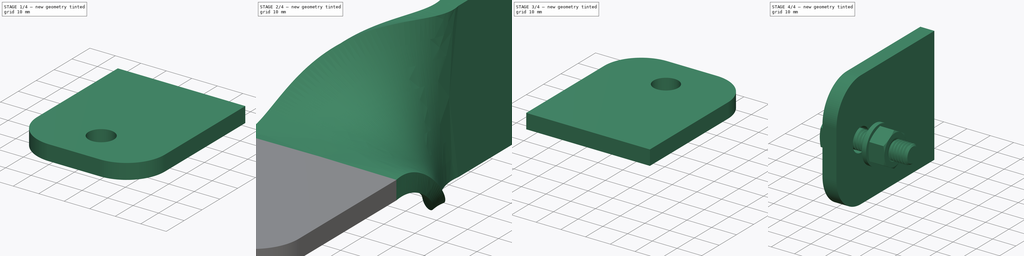
[diagram: build sequence overview — one tinted view per stage of 4, left to right]
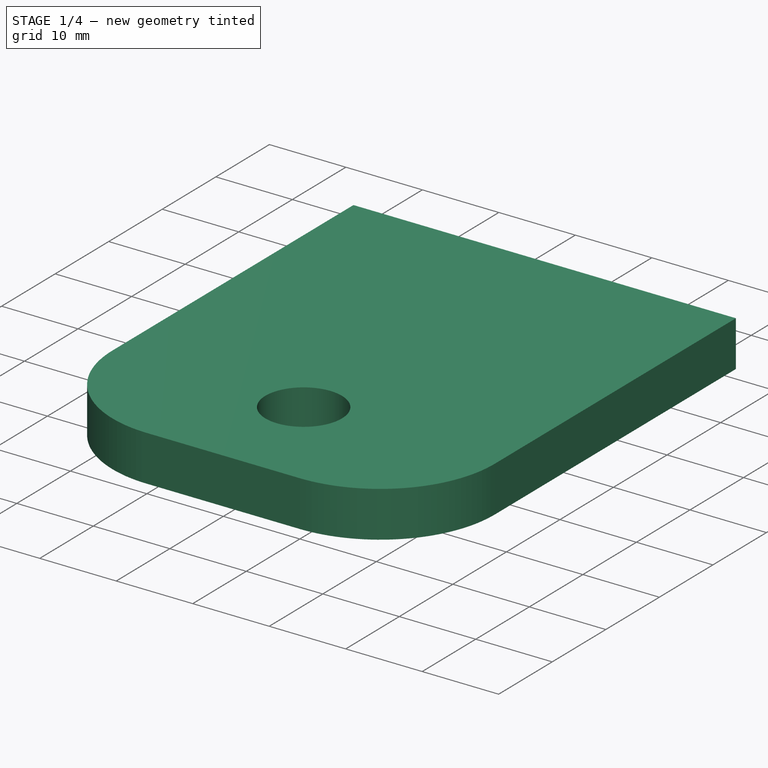
[diagram: stage 1 of 4 — iso view after this stage's code; geometry added in this stage tinted green]
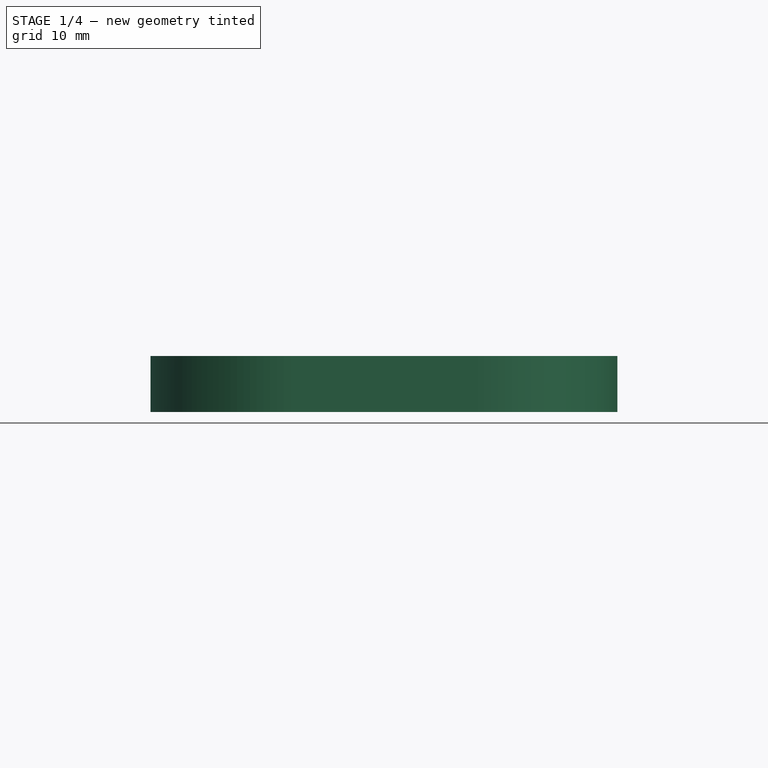
[diagram: stage 1 of 4 — front view after this stage's code; geometry added in this stage tinted green]
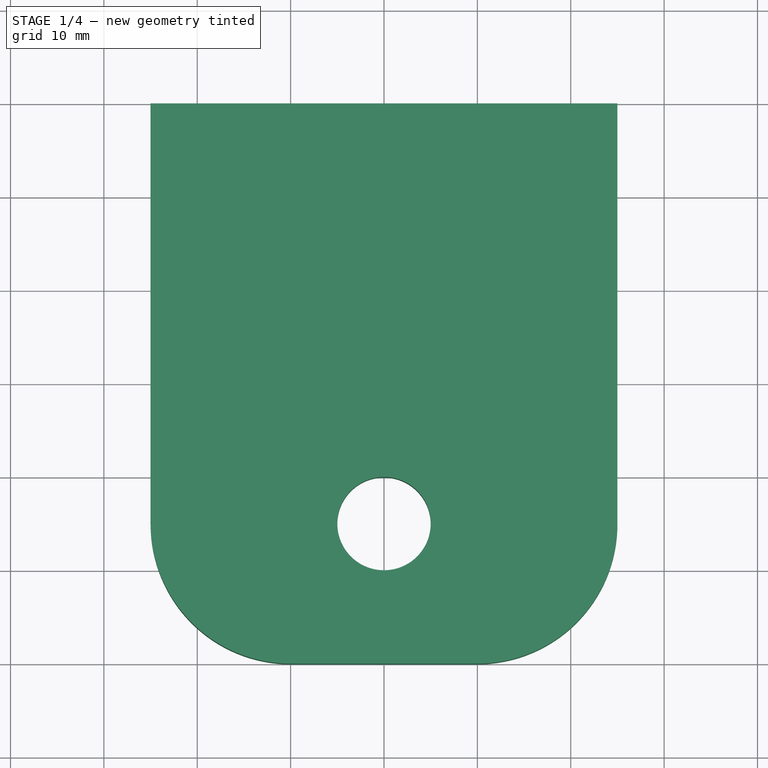
[diagram: stage 1 of 4 — top view after this stage's code; geometry added in this stage tinted green]
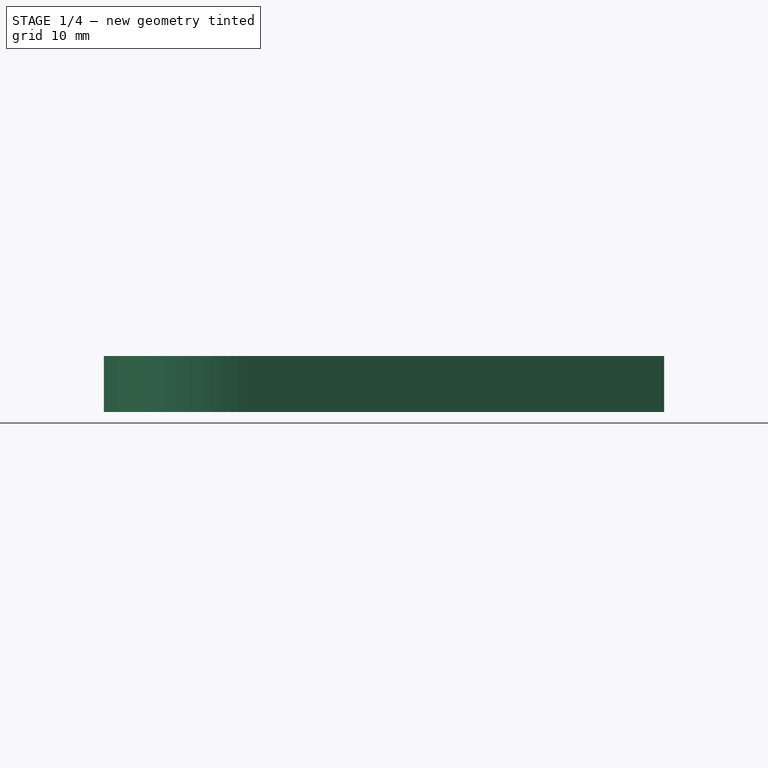
[diagram: stage 1 of 4 — right view after this stage's code; geometry added in this stage tinted green]
FCSTD DOCUMENT  (FreeCAD 0.19R17646 (Git))
Label: CHAPA CURVADA
License: All rights reserved
LicenseURL: http://en.wikipedia.org/wiki/All_rights_reserved
objects: PartDesign::Body×6, Part::FeaturePython×6, PartDesign::FeatureBase×5, Sketcher::SketchObject×1, Part::Loft×1, Part::Extrusion×1, Part::Fillet×1, Part::Cylinder×1, Part::Cut×1, Part::MultiFuse×1, Part::Compound×1
note: 25 computed .brp shape members not serialized (recipe doc carries the construction recipe); baked Part::Feature solids carry a one-line shape summary decoded from their .brp

FEATURE [Part::Extrusion] Extrude
  Base = -> Clone003
  Dir = (-3e-16,1,0)
  DirMode = 2
  FaceMakerClass = Part::FaceMakerBullseye
  LengthFwd = 60
  LengthRev = 0
  Reversed = true
  Solid = true
  Symmetric = false
FEATURE [Part::Fillet] Fillet
  Base = -> Extrude
  Edges = 2 edges r=15: [Edge7,Edge12]
FEATURE [Part::Cylinder] Cylinder
  Angle = 360
  AttacherType = Attacher::AttachEngine3D
  Height = 10
  Placement = pos=(0,-75,-5) rot=(0,0,1;0rad)
  Radius = 5
FEATURE [Part::Cut] Cut
  Base = -> Fillet
  Tool = -> Cylinder
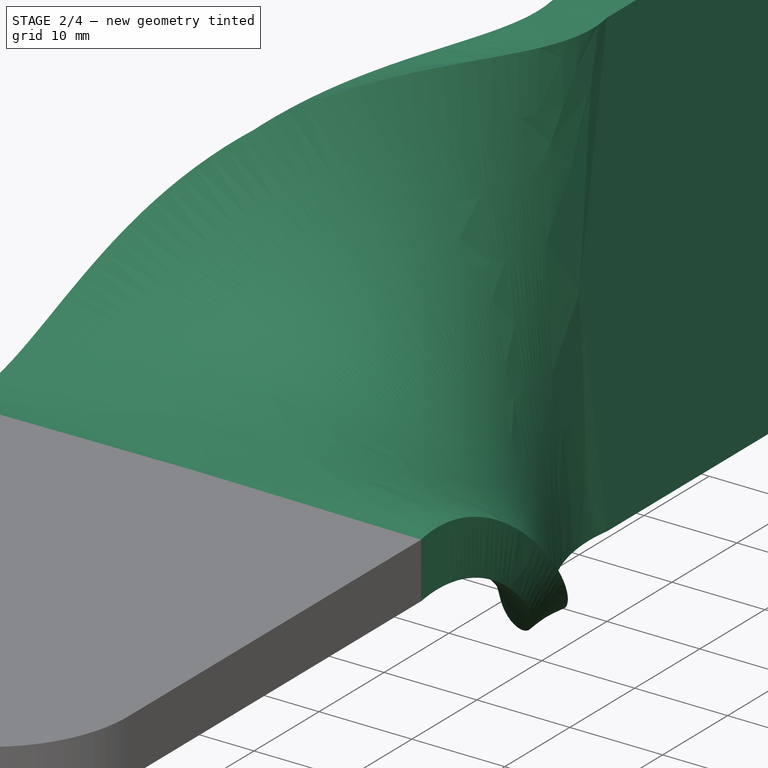
[diagram: stage 2 of 4 — iso view after this stage's code; geometry added in this stage tinted green]
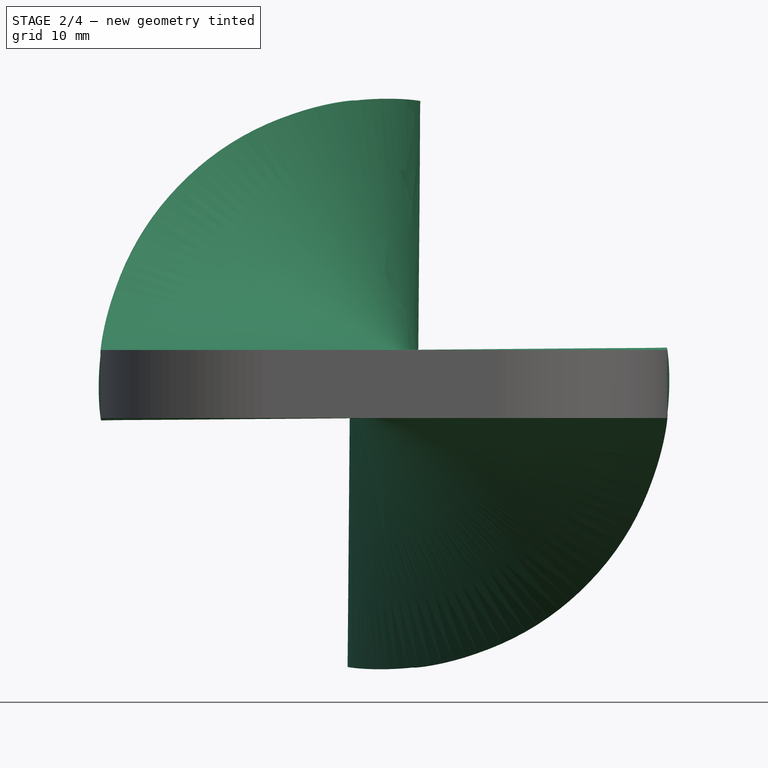
[diagram: stage 2 of 4 — front view after this stage's code; geometry added in this stage tinted green]
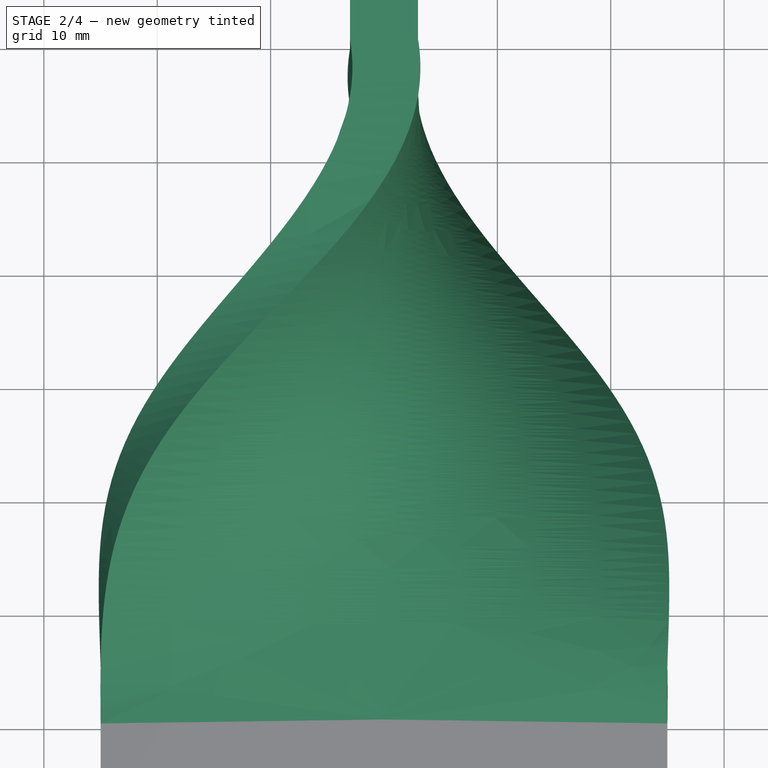
[diagram: stage 2 of 4 — top view after this stage's code; geometry added in this stage tinted green]
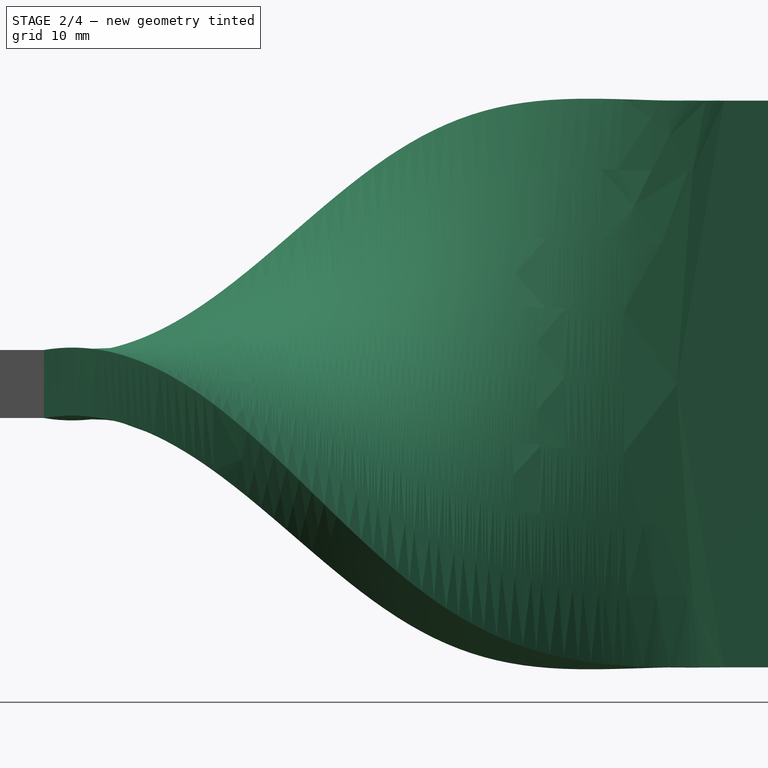
[diagram: stage 2 of 4 — right view after this stage's code; geometry added in this stage tinted green]
FEATURE [Sketcher::SketchObject] Sketch
  MapMode = 5
  Placement = pos=(0,0,0) rot=(1,0,0;1.5708rad)
  Support = -> [XZ_Plane]
  sketch-geometry (4):
    g0: LineSegment StartX=-15.5563 StartY=19.799 StartZ=0 EndX=19.799 EndY=-15.5563 EndZ=0
    g1: LineSegment StartX=19.799 StartY=-15.5563 StartZ=0 EndX=15.5563 EndY=-19.799 EndZ=0
    g2: LineSegment StartX=15.5563 StartY=-19.799 StartZ=0 EndX=-19.799 EndY=15.5563 EndZ=0
    g3: LineSegment StartX=-19.799 StartY=15.5563 StartZ=0 EndX=-15.5563 EndY=19.799 EndZ=0
  constraints (11):
    c: Coincident(g0,g1)
    c: Coincident(g1,g2)
    c: Coincident(g2,g3)
    c: Coincident(g3,g0)
    c: Symmetric(g2,g0,g-1)
    c: Parallel(g0,g2)
    c: Parallel(g1,g3)
    c: Perpendicular(g3,g0)
    c: Distance(g3) = 6
    c: Distance(g0) = 50
    c: Angle(g-2,g0) = 0.785398
FEATURE [PartDesign::Body] Body
  Group = -> [Sketch]
  Origin = -> Origin
FEATURE [PartDesign::FeatureBase] Clone
  BaseFeature = -> Sketch
  Placement = pos=(0,25,-5.6e-15) rot=(-0.862856,-0.357407,0.357407;4.56541rad)
FEATURE [PartDesign::Body] Body001
  Group = -> [Clone]
  Origin = -> Origin001
  Tip = -> Clone
FEATURE [PartDesign::FeatureBase] Clone001
  BaseFeature = -> Sketch
  Placement = pos=(0,30,-6.7e-15) rot=(-0.862856,-0.357407,0.357407;4.56541rad)
FEATURE [PartDesign::Body] Body002
  Group = -> [Clone001]
  Origin = -> Origin002
  Tip = -> Clone001
FEATURE [PartDesign::FeatureBase] Clone002
  BaseFeature = -> Sketch
  Placement = pos=(0,-25,5.6e-15) rot=(0.862856,-0.357407,0.357407;1.71777rad)
FEATURE [PartDesign::Body] Body003
  Group = -> [Clone002]
  Origin = -> Origin003
  Tip = -> Clone002
FEATURE [PartDesign::FeatureBase] Clone003
  BaseFeature = -> Sketch
  Placement = pos=(0,-30,6.7e-15) rot=(0.862856,-0.357407,0.357407;1.71777rad)
FEATURE [PartDesign::Body] Body004
  Group = -> [Clone003]
  Origin = -> Origin004
  Tip = -> Clone003
FEATURE [Part::Loft] Loft
  Closed = false
  MaxDegree = 5
  Ruled = false
  Sections = -> [Clone003,Clone002,Sketch,Clone,Clone001]
  Solid = true
FEATURE [Part::FeaturePython] Clone004  label="Cut001"  # Draft clone (typed FeaturePython)
  AttacherType = Attacher::AttachEngine3D
  Fuse = false
  Objects = -> [Cut]
  Placement = pos=(0,0,0) rot=(-0.707107,0,0.707107;3.14159rad)
  Scale = (1,1,1)
FEATURE [Part::MultiFuse] Fusion
  Shapes = -> [Clone004,Cut,Loft]
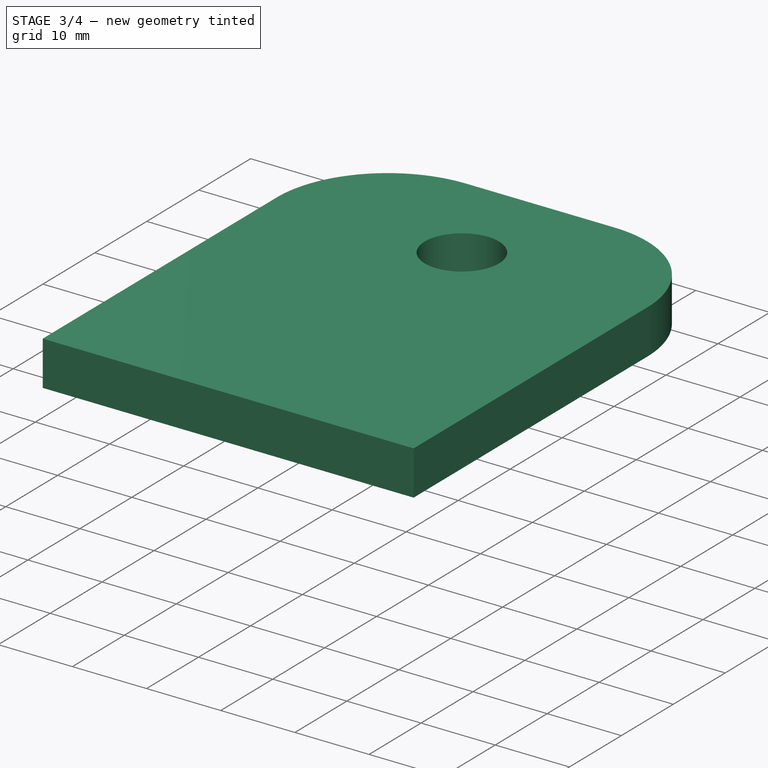
[diagram: stage 3 of 4 — iso view after this stage's code; geometry added in this stage tinted green]
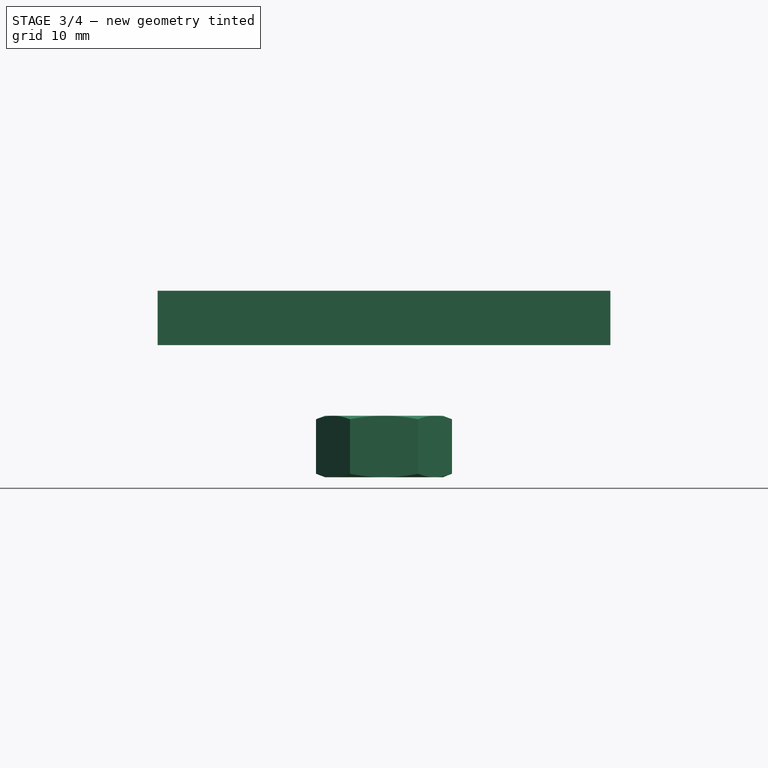
[diagram: stage 3 of 4 — front view after this stage's code; geometry added in this stage tinted green]
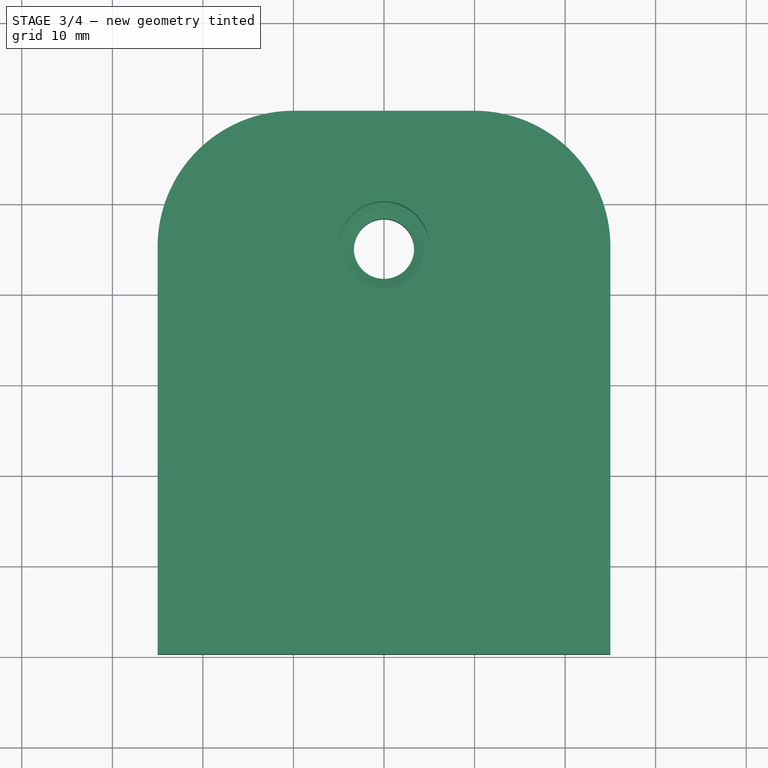
[diagram: stage 3 of 4 — top view after this stage's code; geometry added in this stage tinted green]
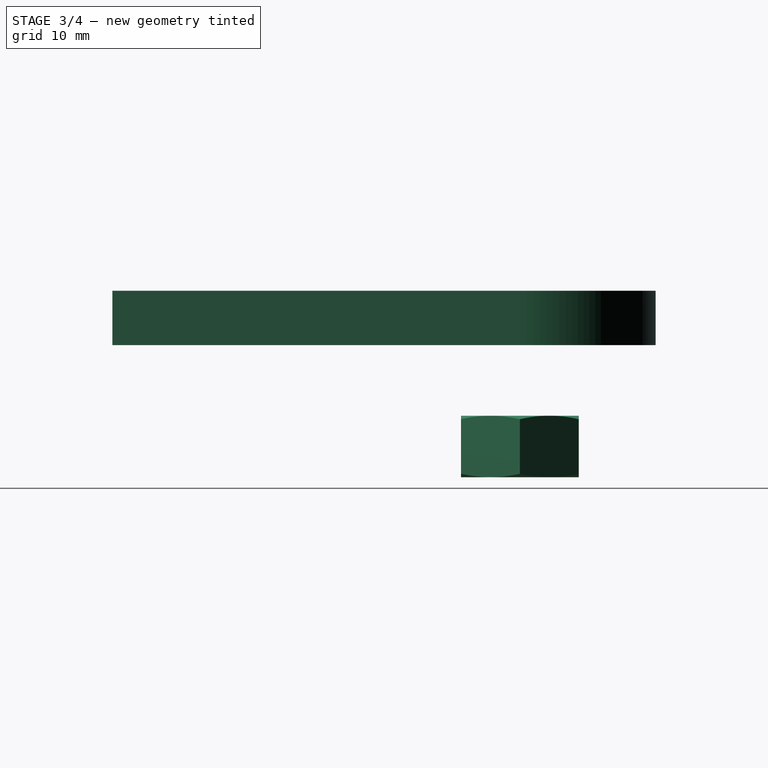
[diagram: stage 3 of 4 — right view after this stage's code; geometry added in this stage tinted green]
FEATURE [Part::FeaturePython] Clone005  label="Cut002"  # Draft clone (typed FeaturePython)
  AttacherType = Attacher::AttachEngine3D
  Fuse = false
  Objects = -> [Cut]
  Placement = pos=(0,-150,6) rot=(1,0,0;3.14159rad)
  Scale = (1,1,1)
FEATURE [Part::FeaturePython] Washer001  label="M8-Washer001"  # Fasteners workbench fastener (typed FeaturePython)
  Placement = pos=(0,-75,-3) rot=(-1,0,0;3.14159rad)
  baseObject = -> Fusion [Edge33]
  diameter = 8
  invert = true
  matchOuter = false
  offset = 0
  type = 0
FEATURE [Part::FeaturePython] Nut  label="M8-Nut"  # Fasteners workbench fastener (typed FeaturePython)
  Placement = pos=(0,-75,-4.8) rot=(-1,0,0;3.14159rad)
  baseObject = -> Washer001 [Edge1]
  diameter = 9
  invert = false
  matchOuter = false
  offset = 0
  thread = false
  type = 4
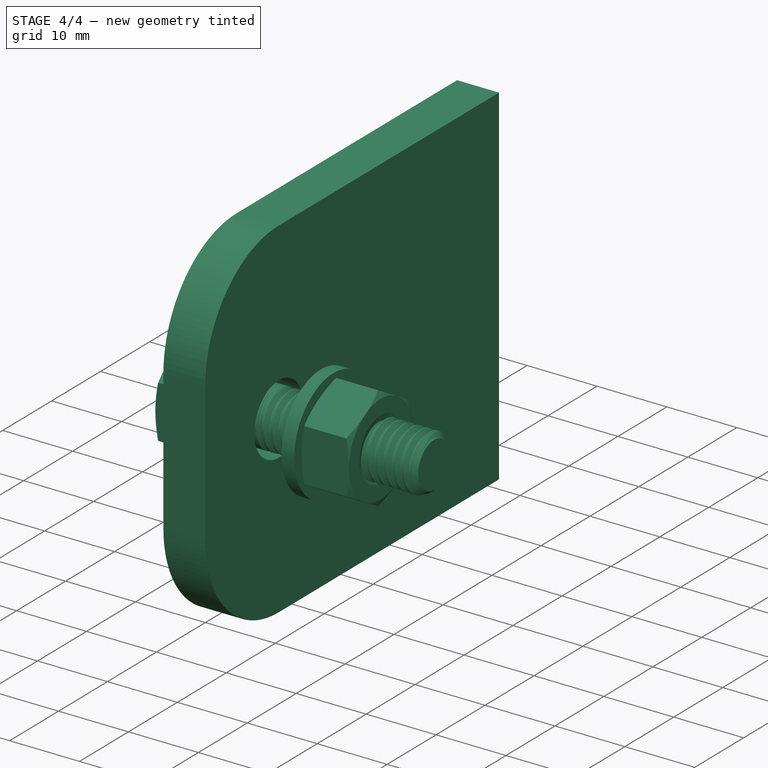
[diagram: stage 4 of 4 — iso view after this stage's code; geometry added in this stage tinted green]
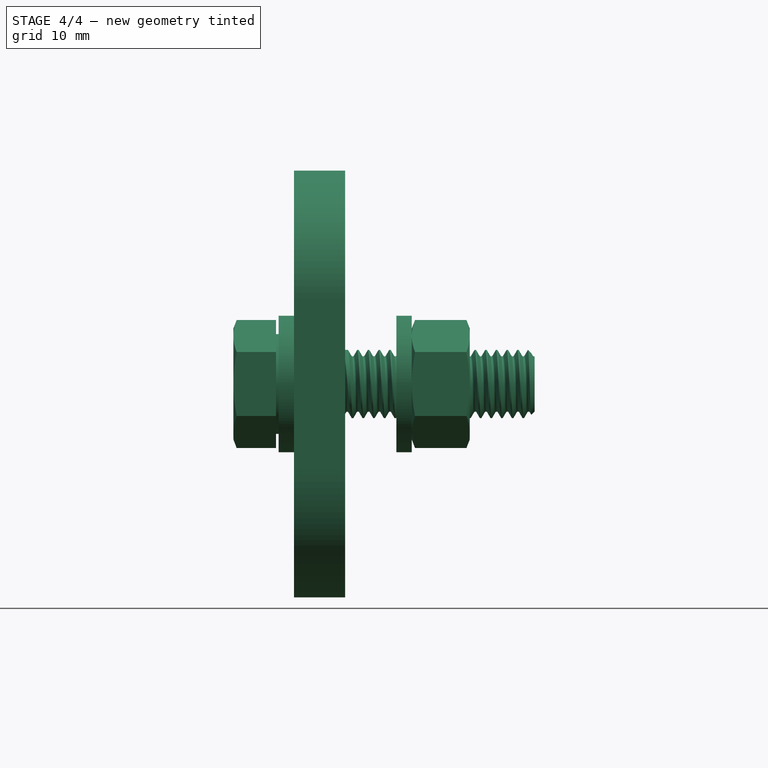
[diagram: stage 4 of 4 — front view after this stage's code; geometry added in this stage tinted green]
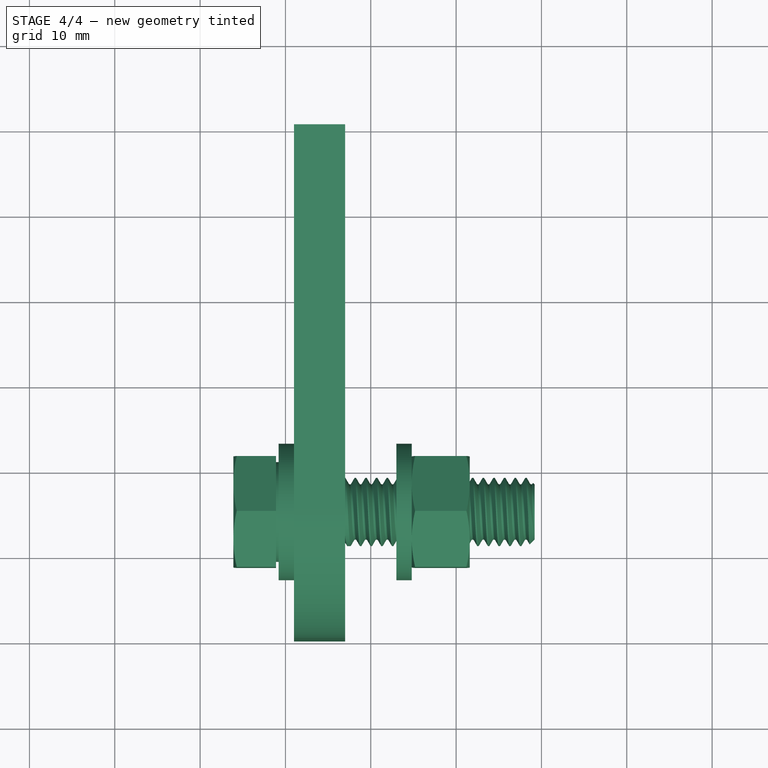
[diagram: stage 4 of 4 — top view after this stage's code; geometry added in this stage tinted green]
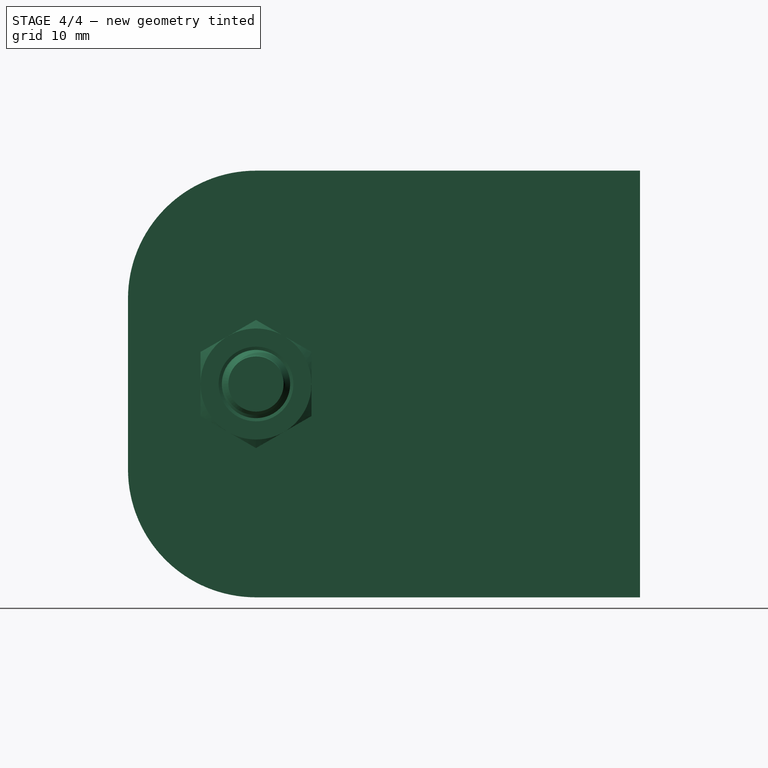
[diagram: stage 4 of 4 — right view after this stage's code; geometry added in this stage tinted green]
FEATURE [Part::FeaturePython] Washer  label="M8-Washer"  # Fasteners workbench fastener (typed FeaturePython)
  Placement = pos=(0,-75,9) rot=(0,0,1;0rad)
  baseObject = -> Clone005 [Edge21]
  diameter = 8
  invert = true
  matchOuter = false
  offset = 0
  type = 0
FEATURE [Part::FeaturePython] Screw  label="M8x30-Screw"  # Fasteners workbench fastener (typed FeaturePython)
  Placement = pos=(0,-75,10.8) rot=(0,0,1;0rad)
  baseObject = -> Washer [Edge1]
  diameter = 9
  invert = false
  length = 0
  matchOuter = false
  offset = 0
  thread = true
  type = 13
FEATURE [Part::Compound] Compound
  Links = -> [Clone005,Washer,Washer001,Screw,Nut]
FEATURE [PartDesign::FeatureBase] Clone006
  BaseFeature = -> Compound
  Placement = pos=(0,0,0) rot=(-0.707107,0,0.707107;3.14159rad)
FEATURE [PartDesign::Body] Body005
  Group = -> [Clone006]
  Origin = -> Origin005
  Tip = -> Clone006
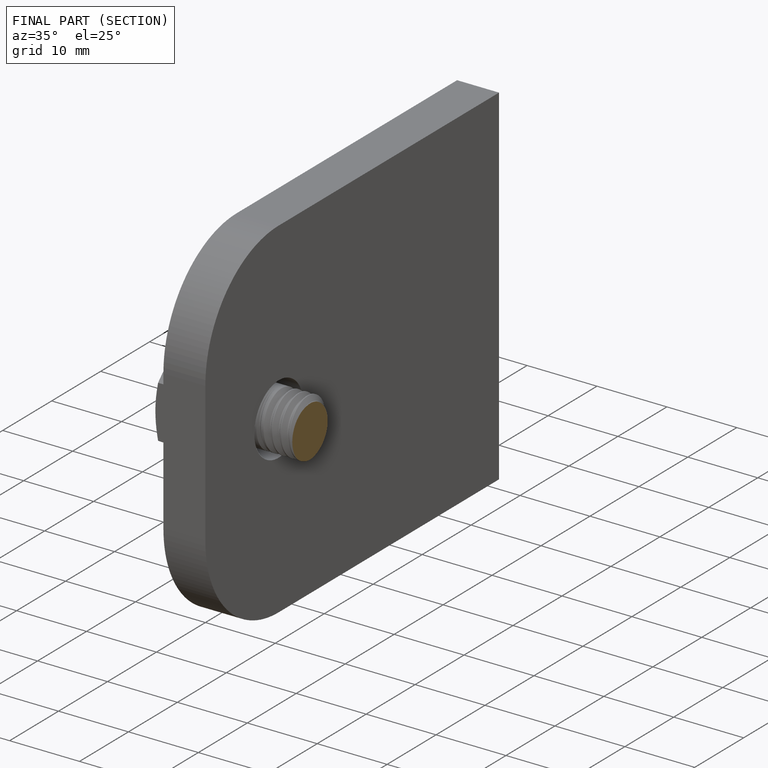
[diagram: finished part — half-section view (interior)]
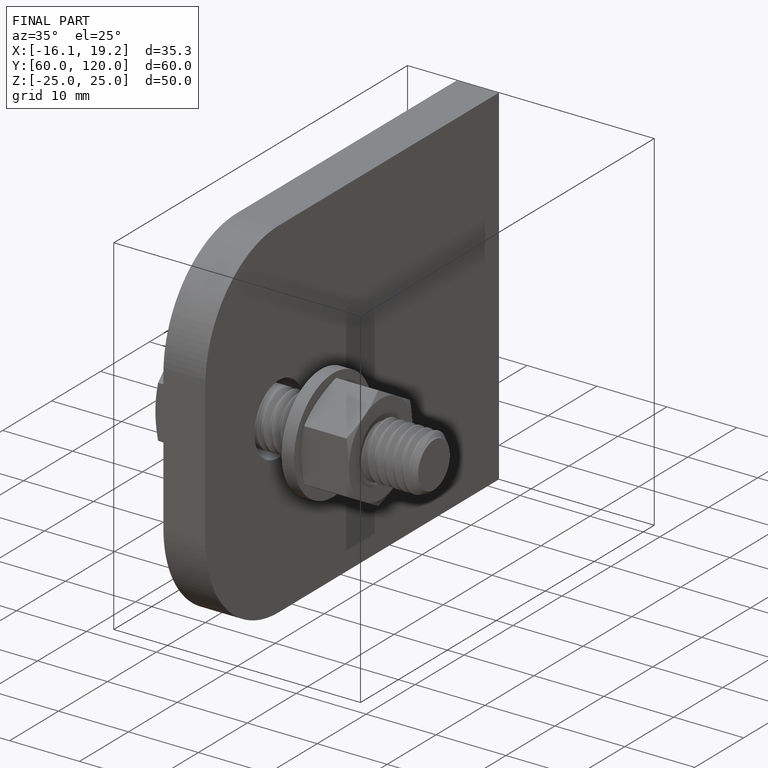
[diagram: finished part — iso view with bounding-box wireframe]
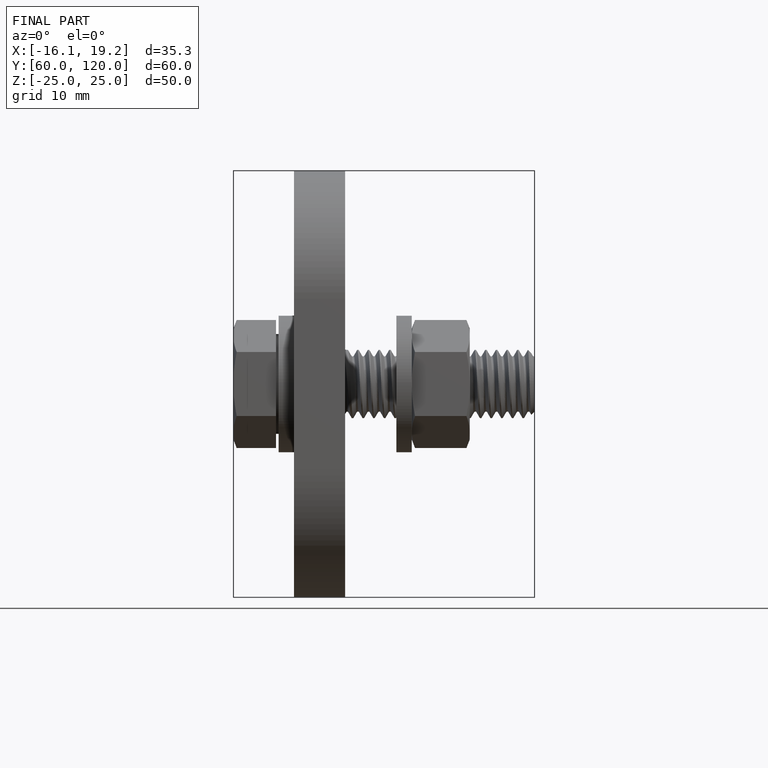
[diagram: finished part — front view with bounding-box wireframe]
